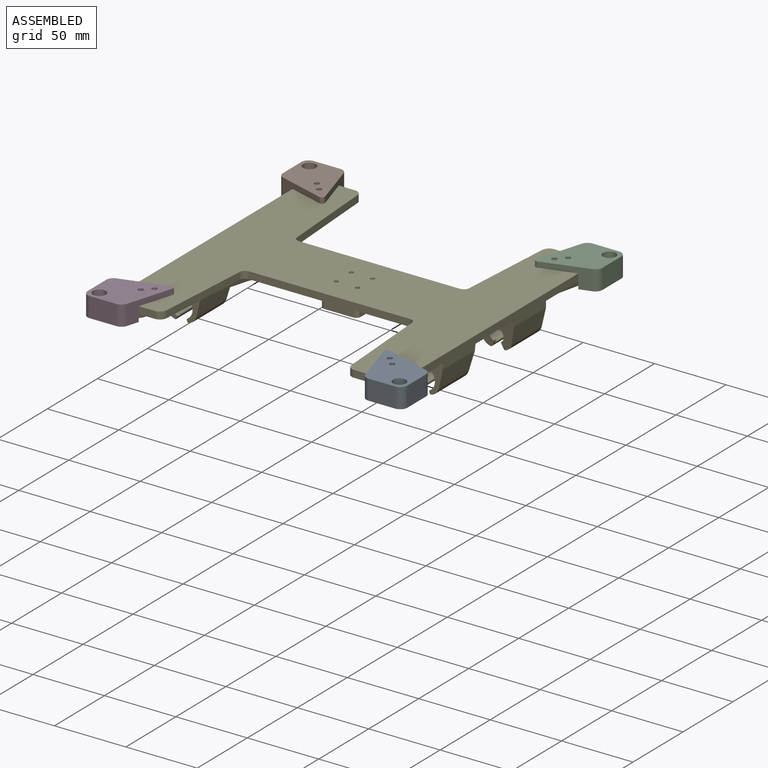
[diagram: assembled view]
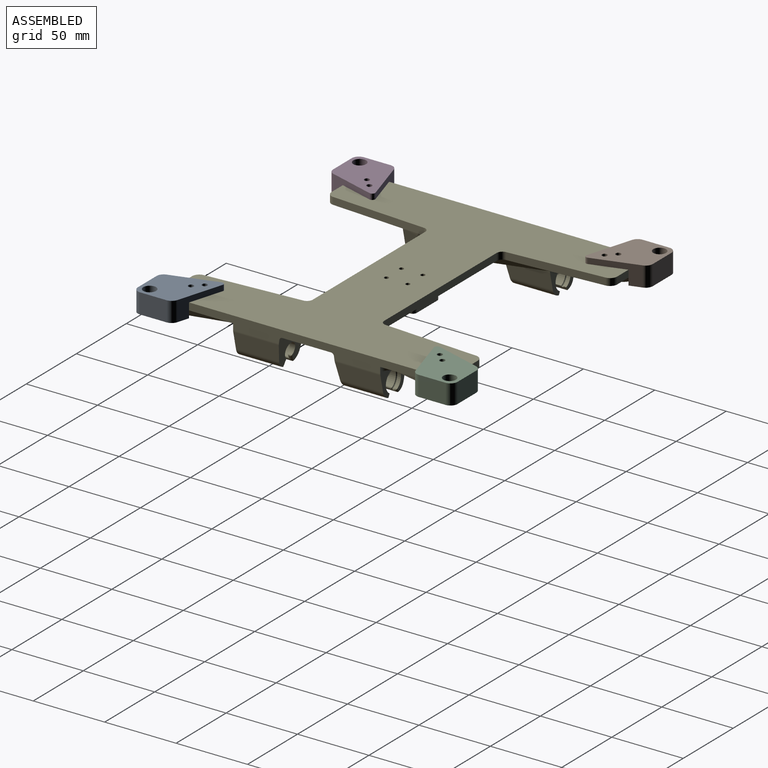
[diagram: assembled view, second angle]
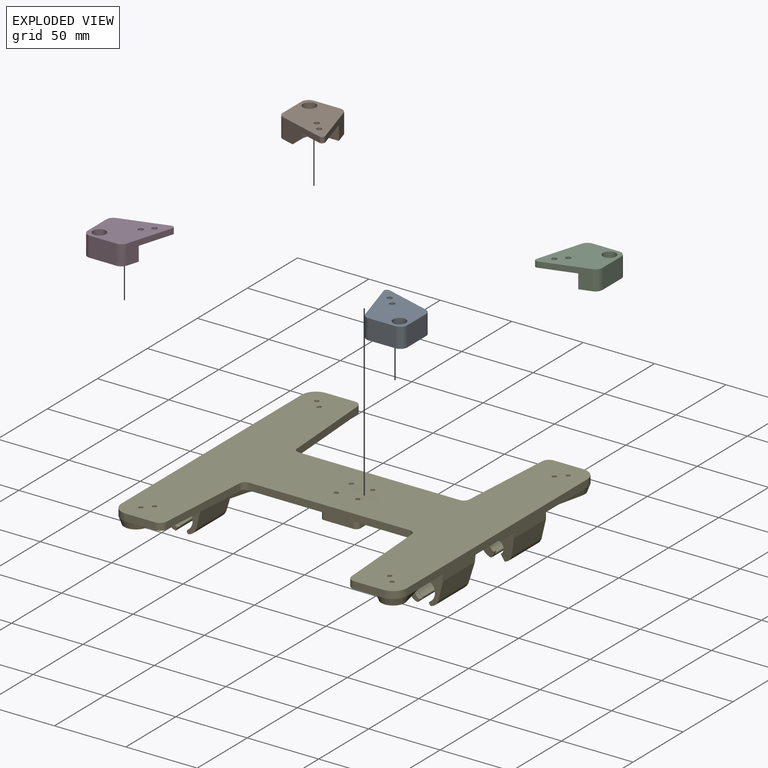
[diagram: exploded view]
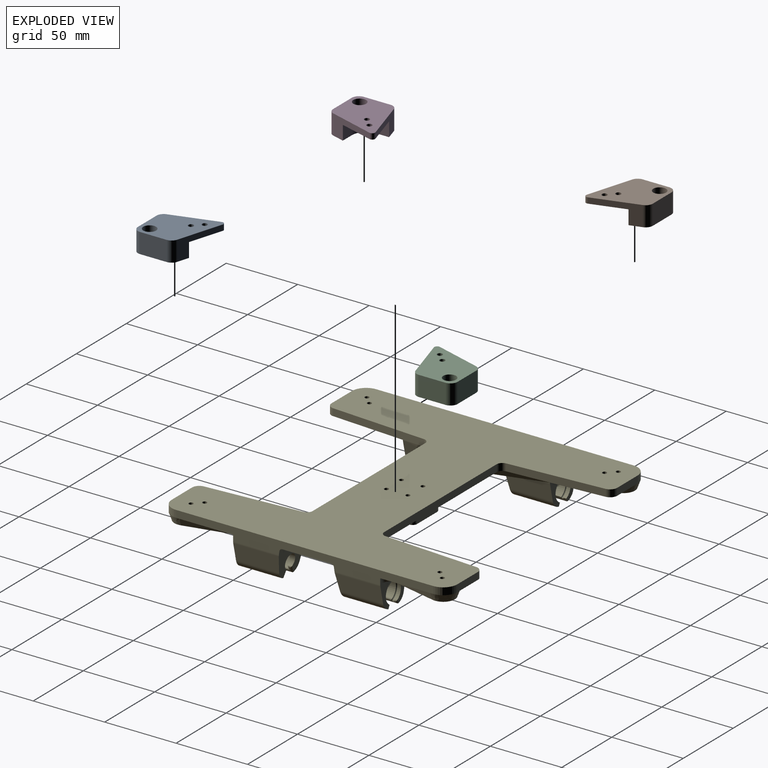
[diagram: exploded view, second angle]
ASSEMBLY  parts=5 mates=3
PART A: 19 faces, bbox 38.1x38.1x14 mm
  f0: cylinder r=2mm len=4mm, axis (0,0,-1), area 37.7mm2, adj f16,f18
  f1: plane 26.18x26.18mm, normal (0,0,-1), area 472.2mm2, adj f2,f3,f4,f9,f11,f13,f14,f15
  f2: plane 31.95x14mm, normal (-0.29,-0.96,0), area 220.5mm2, adj f1,f3,f10,f12,f15,f16
  f3: cylinder r=2mm len=4mm, axis (0,0,-1), area 17.2mm2, adj f1,f2,f4,f12
  f4: plane 31.95x14mm, normal (0.96,0.29,0), area 220.5mm2, adj f1,f3,f5,f12,f13,f16
  f5: cylinder r=5mm len=14mm, axis (0,0,-1), area 89.7mm2, adj f4,f6,f12,f16
  f6: plane 18.69x14mm, normal (0,1,0), area 261.6mm2, adj f5,f7,f12,f16
  f7: cylinder r=5mm len=14mm, axis (0,0,-1), area 110mm2, adj f6,f8,f12,f16
  f8: plane 18.69x14mm, normal (-1,0,0), area 261.6mm2, adj f7,f10,f12,f16
  f9: cylinder r=1.81mm len=4mm, axis (0,0,-1), area 45.5mm2, adj f1,f12
  f10: cylinder r=5mm len=14mm, axis (0,0,-1), area 89.7mm2, adj f2,f8,f12,f16
  f11: cylinder r=1.8mm len=4mm, axis (0,0,-1), area 45.2mm2, adj f1,f12
  f12: plane 38.09x38.09mm, normal (0,0,1), area 973.1mm2, adj f2,f3,f4,f5,f6,f7,f8,f9
  f13: plane 10x9.05mm, normal (0,-1,0), area 90.5mm2, adj f1,f4,f14,f16
  f14: cylinder r=10mm len=10mm, axis (0,0,1), area 157.1mm2, adj f1,f13,f15,f16
  f15: plane 10x9.05mm, normal (1,0,0), area 90.5mm2, adj f1,f2,f14,f16
  f16: plane 30.97x30.97mm, normal (0,0,-1), area 552mm2, adj f0,f2,f4,f5,f6,f7,f8,f10
  f17: cylinder r=4.5mm len=11mm, axis (0,0,1), area 311mm2, adj f12,f18
  f18: plane 9x9mm, normal (0,0,1), area 51.1mm2, adj f0,f17
PART B: same geometry as A
PART C: same geometry as A
PART D: same geometry as A
PART E: 200 faces, bbox 202.7x202.7x31.9 mm
  f0: plane 197.46x86.11mm, normal (0,0,-1), area 3851.8mm2, adj f6,f10,f13,f14,f15,f53,f56,f63
  f1: plane 197.46x86.11mm, normal (0,0,-1), area 3851.8mm2, adj f11,f12,f21,f34,f41,f91,f150,f151
  f2: plane 200x200mm, normal (0,0,1), area 21072.7mm2, adj f68,f69,f70,f71,f72,f73,f74,f75
  f3: plane 0.51x0.01mm, normal (0,0,-1), area 0mm2, adj f9,f177,f178
  f4: plane 0.51x0.01mm, normal (0,0,-1), area 0mm2, adj f7,f178,f179
  f5: plane 0.51x0.01mm, normal (0,0,-1), area 0mm2, adj f171,f181,f182
  f6: plane 42.49x5.33mm, normal (0.08,0.94,-0.34), area 222.2mm2, adj f0,f7,f67,f158,f178
  f7: cone r=5mm half-angle=20deg, axis (0,0,1), area 38.2mm2, adj f4,f6,f67,f159,f175,f178,f179
  f8: cone r=5mm half-angle=20deg, axis (0,0,1), area 38.2mm2, adj f67,f149,f159,f160,f175,f180,f181
  f9: cone r=5mm half-angle=20deg, axis (0,0,1), area 38.2mm2, adj f3,f10,f19,f172,f176,f177,f178
  f10: plane 42.49x5.33mm, normal (0.08,-0.94,-0.34), area 222.2mm2, adj f0,f9,f19,f173,f178
  f11: plane 26.35x23.77mm, normal (0,1,0), area 220.7mm2, adj f1,f18,f21,f28,f31,f32,f88,f89
  f12: plane 26.35x20.9mm, normal (0,-0.99,-0.14), area 334.3mm2, adj f1,f21,f22,f30,f31,f32,f88,f89
  f13: plane 32.1x0.43mm, normal (1,0,0), area 13.7mm2, adj f0,f14,f15,f101
  f14: plane 26.35x23.96mm, normal (0,-1,0), area 225.4mm2, adj f0,f13,f20,f45,f52,f54,f55,f61
  f15: plane 29.09x23.81mm, normal (0,0.99,-0.14), area 344mm2, adj f0,f13,f16,f51,f52,f54,f55,f61
  f16: cylinder r=2mm len=15.22mm, axis (1,0,0), area 43.2mm2, adj f15,f17,f54,f147
  f17: plane 34.23x18.85mm, normal (0,0,-1), area 582.2mm2, adj f16,f54,f64,f147,f154,f155
  f18: plane 181.1x8.46mm, normal (0,0,-1), area 510.5mm2, adj f11,f34,f70,f92,f150,f163,f166,f167
  f19: plane 180x87.5mm, normal (0,0,-1), area 2626.2mm2, adj f9,f10,f69,f73,f81,f82,f83,f86
  f20: plane 181.1x8.46mm, normal (0,0,-1), area 510.5mm2, adj f14,f54,f56,f72,f148,f152,f153,f156
  f21: plane 32.1x0.43mm, normal (-1,0,0), area 13.7mm2, adj f1,f11,f12,f96
  f22: cylinder r=2mm len=15.22mm, axis (-1,0,0), area 43.2mm2, adj f12,f23,f92,f164
  f23: plane 34.23x18.85mm, normal (0,0,-1), area 582.2mm2, adj f22,f92,f94,f151,f164,f165
  f24: plane 1.32x0.63mm, normal (0.91,0,-0.42), area 0.5mm2, adj f137,f139,f140,f142
  f25: plane 25.68x2.96mm, normal (0.91,0,-0.42), area 19mm2, adj f128,f130,f131,f132,f133,f134
  f26: plane 25.68x2.96mm, normal (-0.91,0,-0.42), area 19mm2, adj f120,f121,f122,f124,f125,f127
  f27: plane 2.32x0.63mm, normal (-0.91,0,-0.42), area 1.2mm2, adj f34,f115,f117,f119
  f28: cylinder r=7.55mm len=15.1mm, axis (0,1,0), area 80.1mm2, adj f11,f43,f123,f124,f126,f137,f139,f140
  f29: cylinder r=7.55mm len=15.1mm, axis (0,-1,0), area 80.1mm2, adj f34,f42,f115,f117,f129,f132
  f30: cylinder r=5mm len=10mm, axis (0,-1,0), area 97.3mm2, adj f12,f37,f120,f122,f125,f135,f138,f141
  f31: cylinder r=7mm len=30.15mm, axis (0,1,0), area 232.1mm2, adj f11,f12,f89,f125,f126,f127
  f32: cylinder r=7mm len=30.15mm, axis (0,1,0), area 232.1mm2, adj f11,f12,f88,f140,f141,f142
  f33: cylinder r=5mm len=10mm, axis (0,-1,0), area 97.3mm2, adj f35,f41,f113,f116,f118,f128,f131,f133
  f34: plane 26.35x23.85mm, normal (0,-1,0), area 225.2mm2, adj f1,f18,f27,f29,f39,f40,f90,f91
  f35: plane 15.1x13.91mm, normal (0,-1,0), area 81.5mm2, adj f33,f36,f113,f128
  f36: cylinder r=7.55mm len=23.46mm, axis (0,-1,0), area 916.4mm2, adj f35,f42,f113,f114,f117,f128,f130,f132
  f37: plane 15.1x13.91mm, normal (0,1,0), area 81.5mm2, adj f30,f38,f120,f135
  f38: cylinder r=7.55mm len=23.46mm, axis (0,1,0), area 916.4mm2, adj f37,f43,f120,f121,f124,f135,f136,f139
  f39: cylinder r=7mm len=30.15mm, axis (0,1,0), area 232.1mm2, adj f34,f41,f93,f118,f119
  f40: cylinder r=7mm len=30.15mm, axis (0,1,0), area 232.1mm2, adj f34,f41,f90,f133,f134
  f41: plane 26.35x20.9mm, normal (0,0.99,-0.14), area 334.3mm2, adj f1,f33,f39,f40,f90,f91,f92,f93
  f42: torus R=7.55mm, axis (0,-1,0), area 97.9mm2, adj f29,f36,f117,f132
  f43: torus R=7.55mm, axis (0,1,0), area 97.9mm2, adj f28,f38,f124,f139
  f44: cylinder r=7.55mm len=15.1mm, axis (0,1,0), area 83.7mm2, adj f56,f66,f103,f104
  f45: cylinder r=7.55mm len=15.1mm, axis (0,-1,0), area 80.1mm2, adj f14,f65,f107,f108
  f46: cylinder r=5mm len=10mm, axis (0,-1,0), area 81.7mm2, adj f59,f63,f103,f104
  f47: plane 31.88x12.02mm, normal (0.97,0,-0.23), area 382.8mm2, adj f50,f56,f63,f99
  f48: plane 31.88x12.02mm, normal (-0.97,0,-0.23), area 382.8mm2, adj f49,f56,f63,f100
  f49: cylinder r=7mm len=30.15mm, axis (0,1,0), area 257mm2, adj f48,f56,f63,f103
  f50: cylinder r=7mm len=30.15mm, axis (0,1,0), area 257mm2, adj f47,f56,f63,f104
  f51: cylinder r=5mm len=10mm, axis (0,-1,0), area 81.7mm2, adj f15,f57,f105,f106
  f52: plane 31.88x12.02mm, normal (0.97,0,-0.23), area 382.8mm2, adj f14,f15,f62,f101
  f53: plane 32.1x0.43mm, normal (1,0,0), area 13.7mm2, adj f0,f56,f63,f99
  f54: plane 103x5.43mm, normal (-1,0,0), area 397.2mm2, adj f14,f15,f16,f17,f20,f56,f63,f64
  f55: plane 31.88x12.02mm, normal (-0.97,0,-0.23), area 382.8mm2, adj f14,f15,f61,f102
  f56: plane 26.35x23.96mm, normal (0,1,0), area 225.8mm2, adj f0,f20,f44,f47,f48,f49,f50,f53
  f57: plane 15.25x15.1mm, normal (0,-1,0), area 86.9mm2, adj f51,f58,f105,f106,f107,f108
  f58: cylinder r=7.55mm len=23.45mm, axis (0,-1,0), area 916.4mm2, adj f57,f65,f107,f108
  f59: plane 15.1x14.39mm, normal (0,1,0), area 86.6mm2, adj f46,f60,f103,f104
  f60: cylinder r=7.55mm len=23.45mm, axis (0,1,0), area 957.9mm2, adj f59,f66,f103,f104
  f61: cylinder r=7mm len=30.15mm, axis (0,1,0), area 257mm2, adj f14,f15,f55,f105
  f62: cylinder r=7mm len=30.15mm, axis (0,1,0), area 257mm2, adj f14,f15,f52,f106
  f63: plane 29.09x23.81mm, normal (0,-0.99,-0.14), area 344mm2, adj f0,f46,f47,f48,f49,f50,f53,f54
  f64: cylinder r=2mm len=15.22mm, axis (1,0,0), area 43.2mm2, adj f17,f54,f63,f155
  f65: torus R=7.55mm, axis (0,-1,0), area 101.5mm2, adj f45,f58,f107,f108
  f66: torus R=7.55mm, axis (0,1,0), area 102.3mm2, adj f44,f60,f103,f104
  f67: plane 180x87.5mm, normal (0,0,-1), area 2626.2mm2, adj f6,f7,f8,f68,f71,f78,f79,f80
  f68: plane 20.32x5mm, normal (0,1,0), area 101.6mm2, adj f2,f67,f74,f85
  f69: plane 20.32x5mm, normal (0,-1,0), area 101.6mm2, adj f2,f19,f77,f87
  f70: plane 180x5mm, normal (1,0,0), area 900mm2, adj f2,f18,f74,f77
  f71: plane 20.32x5mm, normal (0,1,0), area 101.6mm2, adj f2,f67,f75,f84
  f72: plane 180x5mm, normal (-1,0,0), area 900mm2, adj f2,f20,f75,f76
  f73: plane 20.32x5mm, normal (0,-1,0), area 101.6mm2, adj f2,f19,f76,f86
  f74: cylinder r=10mm len=10mm, axis (0,0,1), area 78.5mm2, adj f2,f68,f70,f163
  f75: cylinder r=10mm len=10mm, axis (0,0,-1), area 78.5mm2, adj f2,f71,f72,f156
  f76: cylinder r=10mm len=10mm, axis (0,0,1), area 78.5mm2, adj f2,f72,f73,f152
  f77: cylinder r=10mm len=10mm, axis (0,0,-1), area 78.5mm2, adj f2,f69,f70,f167
  f78: plane 112.52x5mm, normal (0,1,0), area 562.6mm2, adj f2,f67,f143,f144
  f79: plane 66.6x5mm, normal (1,0.07,0), area 333.7mm2, adj f2,f67,f84,f143
  f80: plane 66.6x5mm, normal (-1,0.07,0), area 333.7mm2, adj f2,f67,f85,f144
  f81: plane 66.6x5mm, normal (1,-0.07,0), area 333.7mm2, adj f2,f19,f86,f146
  f82: plane 112.52x5mm, normal (0,-1,0), area 562.6mm2, adj f2,f19,f145,f146
  f83: plane 66.6x5mm, normal (-1,-0.07,0), area 333.7mm2, adj f2,f19,f87,f145
  f84: cylinder r=5mm len=5mm, axis (0,0,-1), area 37.6mm2, adj f2,f67,f71,f79
  f85: cylinder r=5mm len=5mm, axis (0,0,1), area 37.6mm2, adj f2,f67,f68,f80
  f86: cylinder r=5mm len=5mm, axis (0,0,-1), area 37.6mm2, adj f2,f19,f73,f81
  f87: cylinder r=5mm len=5mm, axis (0,0,1), area 37.6mm2, adj f2,f19,f69,f83
  f88: plane 31.88x12.02mm, normal (-0.97,0,-0.23), area 382.8mm2, adj f11,f12,f32,f96
  f89: plane 31.88x12.02mm, normal (0.97,0,-0.23), area 382.8mm2, adj f11,f12,f31,f95
  f90: plane 31.88x12.02mm, normal (-0.97,0,-0.23), area 382.8mm2, adj f34,f40,f41,f97
  f91: plane 32.1x0.43mm, normal (-1,0,0), area 13.7mm2, adj f1,f34,f41,f97
  f92: plane 103x5.43mm, normal (1,0,0), area 397.2mm2, adj f11,f12,f18,f22,f23,f34,f41,f94
  f93: plane 31.88x12.02mm, normal (0.97,0,-0.23), area 382.8mm2, adj f34,f39,f41,f98
  f94: cylinder r=2mm len=15.22mm, axis (-1,0,0), area 43.2mm2, adj f23,f41,f92,f151
  f95: cylinder r=5mm len=32.04mm, axis (0,1,0), area 36.4mm2, adj f11,f12,f89,f92
  f96: cylinder r=5mm len=32.04mm, axis (0,1,0), area 36.4mm2, adj f11,f12,f21,f88
  f97: cylinder r=5mm len=32.04mm, axis (0,1,0), area 36.4mm2, adj f34,f41,f90,f91
  f98: cylinder r=5mm len=32.04mm, axis (0,1,0), area 36.4mm2, adj f34,f41,f92,f93
  f99: cylinder r=5mm len=32.04mm, axis (0,1,0), area 36.4mm2, adj f47,f53,f56,f63
  f100: cylinder r=5mm len=32.04mm, axis (0,1,0), area 36.4mm2, adj f48,f54,f56,f63
  f101: cylinder r=5mm len=32.04mm, axis (0,1,0), area 36.4mm2, adj f13,f14,f15,f52
  f102: cylinder r=5mm len=32.04mm, axis (0,1,0), area 36.4mm2, adj f14,f15,f54,f55
  f103: plane 30.02x4.48mm, normal (0.91,0,-0.42), area 77mm2, adj f44,f46,f49,f56,f59,f60,f63,f66
  f104: plane 30.02x4.48mm, normal (-0.91,0,-0.42), area 77mm2, adj f44,f46,f50,f56,f59,f60,f63,f66
  f105: plane 30.02x4.48mm, normal (0.91,0,-0.42), area 52.4mm2, adj f14,f15,f51,f57,f61,f108
  f106: plane 30.02x4.48mm, normal (-0.91,0,-0.42), area 52.4mm2, adj f14,f15,f51,f57,f62,f107
  f107: cylinder r=1mm len=27mm, axis (0,-1,0), area 37.6mm2, adj f14,f45,f57,f58,f65,f106
  f108: cylinder r=1mm len=27mm, axis (0,-1,0), area 37.6mm2, adj f14,f45,f57,f58,f65,f105
  f109: plane 25.68x2.96mm, normal (0.91,0,-0.42), area 19mm2, adj f135,f136,f138,f139,f141,f142
  f110: plane 1.32x0.63mm, normal (-0.91,0,-0.42), area 0.5mm2, adj f123,f124,f126,f127
  f111: plane 2.32x0.63mm, normal (0.91,0,-0.42), area 1.2mm2, adj f34,f129,f132,f134
  f112: plane 25.68x2.96mm, normal (-0.91,0,-0.42), area 19mm2, adj f113,f114,f116,f117,f118,f119
  f113: cylinder r=1mm len=3.68mm, axis (0.42,0,-0.91), area 4mm2, adj f33,f35,f36,f112,f114,f116
  f114: cylinder r=1mm len=24.44mm, axis (0,-1,0), area 34.3mm2, adj f36,f112,f113,f117
  f115: cylinder r=1mm len=2.04mm, axis (0,-1,0), area 2.5mm2, adj f27,f29,f34,f117
  f116: cylinder r=1mm len=3.06mm, axis (0,-1,0), area 2.8mm2, adj f33,f112,f113,f118
  f117: bspline ~3.5x2.19mm, area 4.2mm2, adj f27,f29,f36,f42,f112,f114,f115,f119
  f118: cylinder r=1mm len=5.08mm, axis (-0.42,0.13,0.9), area 6.9mm2, adj f33,f39,f41,f112,f116,f119
  f119: cylinder r=1mm len=29.39mm, axis (0,1,0), area 39.4mm2, adj f27,f34,f39,f112,f117,f118
  f120: cylinder r=1mm len=3.68mm, axis (-0.42,0,0.91), area 4mm2, adj f26,f30,f37,f38,f121,f122
  f121: cylinder r=1mm len=24.44mm, axis (0,1,0), area 34.3mm2, adj f26,f38,f120,f124
  f122: cylinder r=1mm len=3.06mm, axis (0,-1,0), area 2.8mm2, adj f26,f30,f120,f125
  f123: cylinder r=1mm len=2.04mm, axis (0,1,0), area 1.7mm2, adj f28,f110,f124,f126
  f124: bspline ~3.5x2.19mm, area 4.2mm2, adj f26,f28,f38,f43,f110,f121,f123,f127
  f125: cylinder r=1mm len=5.08mm, axis (0.42,0.13,-0.9), area 6.9mm2, adj f12,f26,f30,f31,f122,f127
  f126: cylinder r=1mm len=2.88mm, axis (-0.42,0,0.91), area 3.1mm2, adj f11,f28,f31,f110,f123,f127
  f127: cylinder r=1mm len=29.36mm, axis (0,1,0), area 38.7mm2, adj f26,f31,f110,f124,f125,f126
  f128: cylinder r=1mm len=3.68mm, axis (0.42,0,0.91), area 4mm2, adj f25,f33,f35,f36,f130,f131
  f129: cylinder r=1mm len=2.04mm, axis (0,-1,0), area 2.5mm2, adj f29,f34,f111,f132
  f130: cylinder r=1mm len=24.44mm, axis (0,-1,0), area 34.3mm2, adj f25,f36,f128,f132
  f131: cylinder r=1mm len=3.06mm, axis (0,-1,0), area 2.8mm2, adj f25,f33,f128,f133
  f132: bspline ~3.5x2.19mm, area 4.2mm2, adj f25,f29,f36,f42,f111,f129,f130,f134
  f133: cylinder r=1mm len=5.08mm, axis (-0.42,-0.13,-0.9), area 6.9mm2, adj f25,f33,f40,f41,f131,f134
  f134: cylinder r=1mm len=29.39mm, axis (0,1,0), area 39.4mm2, adj f25,f34,f40,f111,f132,f133
  f135: cylinder r=1mm len=3.68mm, axis (-0.42,0,-0.91), area 4mm2, adj f30,f37,f38,f109,f136,f138
  f136: cylinder r=1mm len=24.44mm, axis (0,1,0), area 34.3mm2, adj f38,f109,f135,f139
  f137: cylinder r=1mm len=2.04mm, axis (0,1,0), area 1.7mm2, adj f24,f28,f139,f140
  f138: cylinder r=1mm len=3.06mm, axis (0,-1,0), area 2.8mm2, adj f30,f109,f135,f141
  f139: bspline ~3.5x2.19mm, area 4.2mm2, adj f24,f28,f38,f43,f109,f136,f137,f142
  f140: cylinder r=1mm len=2.88mm, axis (-0.42,0,-0.91), area 3.1mm2, adj f11,f24,f28,f32,f137,f142
  f141: cylinder r=1mm len=5.08mm, axis (0.42,-0.13,0.9), area 6.9mm2, adj f12,f30,f32,f109,f138,f142
  f142: cylinder r=1mm len=29.36mm, axis (0,1,0), area 38.7mm2, adj f24,f32,f109,f139,f140,f141
  f143: cylinder r=4mm len=5mm, axis (0,0,-1), area 30.1mm2, adj f2,f67,f78,f79
  f144: cylinder r=4mm len=5mm, axis (0,0,1), area 30.1mm2, adj f2,f67,f78,f80
  f145: cylinder r=4mm len=5mm, axis (0,0,1), area 30.1mm2, adj f2,f19,f82,f83
  f146: cylinder r=4mm len=5mm, axis (0,0,-1), area 30.1mm2, adj f2,f19,f81,f82
  f147: plane 18.6x5.59mm, normal (-0.92,0.21,-0.34), area 73.6mm2, adj f0,f15,f16,f17,f154
  f148: plane 30.6x8.85mm, normal (-0.92,-0.21,-0.34), area 166mm2, adj f0,f20,f156,f197
  f149: plane 0.51x0.01mm, normal (0,0,-1), area 0mm2, adj f8,f180,f181
  f150: plane 30.6x8.85mm, normal (0.92,-0.21,-0.34), area 166mm2, adj f1,f18,f163,f198
  f151: plane 18.6x5.59mm, normal (0.92,0.21,-0.34), area 73.6mm2, adj f1,f23,f41,f94,f165
  f152: cone r=10mm half-angle=20deg, axis (0,0,1), area 149.8mm2, adj f0,f19,f20,f76,f153,f174
  f153: plane 30.6x8.85mm, normal (-0.92,0.21,-0.34), area 166mm2, adj f0,f20,f152,f196
  f154: cone r=5mm half-angle=20deg, axis (0,0,-1), area 11.3mm2, adj f0,f17,f147,f155
  f155: plane 18.6x5.59mm, normal (-0.92,-0.21,-0.34), area 73.6mm2, adj f0,f17,f63,f64,f154
  f156: cone r=10mm half-angle=20deg, axis (0,0,1), area 149.8mm2, adj f0,f20,f67,f75,f148,f157
  f157: plane 73.69x22.21mm, normal (0.91,0.25,-0.34), area 404.4mm2, adj f0,f67,f156,f158
  f158: cone r=5mm half-angle=20deg, axis (0,0,-1), area 38.2mm2, adj f0,f6,f67,f157
  f159: plane 20x5mm, normal (0,0.94,-0.34), area 106.4mm2, adj f7,f8,f67,f175
  f160: plane 42.49x5.33mm, normal (-0.08,0.94,-0.34), area 222.2mm2, adj f1,f8,f67,f161,f181
  f161: cone r=5mm half-angle=20deg, axis (0,0,-1), area 38.2mm2, adj f1,f67,f160,f162
  f162: plane 73.69x22.21mm, normal (-0.91,0.25,-0.34), area 404.4mm2, adj f1,f67,f161,f163
  f163: cone r=10mm half-angle=20deg, axis (0,0,1), area 149.8mm2, adj f1,f18,f67,f74,f150,f162
  f164: plane 18.6x5.59mm, normal (0.92,-0.21,-0.34), area 73.6mm2, adj f1,f12,f22,f23,f165
  f165: cone r=5mm half-angle=20deg, axis (0,0,-1), area 11.3mm2, adj f1,f23,f151,f164
  f166: plane 30.6x8.85mm, normal (0.92,0.21,-0.34), area 166mm2, adj f1,f18,f167,f199
  f167: cone r=10mm half-angle=20deg, axis (0,0,1), area 149.8mm2, adj f1,f18,f19,f77,f166,f168
  f168: plane 73.69x22.21mm, normal (-0.91,-0.25,-0.34), area 404.4mm2, adj f1,f19,f167,f169
  f169: cone r=5mm half-angle=20deg, axis (0,0,-1), area 38.2mm2, adj f1,f19,f168,f170
  f170: plane 42.49x5.33mm, normal (-0.08,-0.94,-0.34), area 222.2mm2, adj f1,f19,f169,f171,f181
  f171: cone r=5mm half-angle=20deg, axis (0,0,1), area 38.2mm2, adj f5,f19,f170,f172,f176,f181,f182
  f172: plane 20x5mm, normal (0,-0.94,-0.34), area 106.4mm2, adj f9,f19,f171,f176
  f173: cone r=5mm half-angle=20deg, axis (0,0,-1), area 38.2mm2, adj f0,f10,f19,f174
  f174: plane 73.69x22.21mm, normal (0.91,-0.25,-0.34), area 404.4mm2, adj f0,f19,f152,f173
  f175: plane 20.35x5.02mm, normal (0,1,0), area 101.7mm2, adj f7,f8,f159,f179,f180,f183
  f176: plane 20.35x5.02mm, normal (0,-1,0), area 101.7mm2, adj f9,f171,f172,f177,f182,f183
  f177: cylinder r=3mm len=5.19mm, axis (0,0,1), area 24.1mm2, adj f3,f9,f176,f178,f183
  f178: plane 25.36x6.03mm, normal (-1,0,0), area 128.3mm2, adj f0,f3,f4,f6,f7,f9,f10,f177
  f179: cylinder r=3mm len=5.19mm, axis (0,0,1), area 24.1mm2, adj f4,f7,f175,f178,f183
  f180: cylinder r=3mm len=5.19mm, axis (0,0,1), area 24.1mm2, adj f8,f149,f175,f181,f183
  f181: plane 25.36x6.03mm, normal (1,0,0), area 128.3mm2, adj f1,f5,f8,f149,f160,f170,f171,f180
  f182: cylinder r=3mm len=5.19mm, axis (0,0,1), area 24.1mm2, adj f5,f171,f176,f181,f183
  f183: plane 31.36x26.34mm, normal (0,0,-1), area 790.1mm2, adj f175,f176,f177,f178,f179,f180,f181,f182
  f184: cylinder r=1.5mm len=15mm, axis (0,0,1), area 141.4mm2, adj f2,f183
  f185: cylinder r=1.5mm len=15mm, axis (0,0,1), area 141.4mm2, adj f2,f183
  f186: cylinder r=1.5mm len=15mm, axis (0,0,1), area 141.4mm2, adj f2,f183
  f187: cylinder r=1.5mm len=15mm, axis (0,0,1), area 141.4mm2, adj f2,f183
  f188: cylinder r=1.5mm len=10mm, axis (0,0,1), area 94.2mm2, adj f0,f2
  f189: cylinder r=1.5mm len=10mm, axis (0,0,1), area 94.2mm2, adj f1,f2
  f190: cylinder r=1.5mm len=10mm, axis (0,0,1), area 94.2mm2, adj f0,f2
  f191: cylinder r=1.5mm len=10mm, axis (0,0,1), area 94.2mm2, adj f0,f2
  f192: cylinder r=1.5mm len=10mm, axis (0,0,1), area 94.2mm2, adj f0,f2
  f193: cylinder r=1.5mm len=10mm, axis (0,0,1), area 94.2mm2, adj f1,f2
  f194: cylinder r=1.5mm len=10mm, axis (0,0,1), area 94.2mm2, adj f1,f2
  f195: cylinder r=1.5mm len=10mm, axis (0,0,1), area 94.2mm2, adj f1,f2
  f196: cylinder r=5mm len=8.46mm, axis (0.35,0,-0.94), area 47.6mm2, adj f0,f14,f20,f153
  f197: cylinder r=5mm len=8.46mm, axis (0.35,0,-0.94), area 47.6mm2, adj f0,f20,f56,f148
  f198: cylinder r=5mm len=8.46mm, axis (-0.35,0,-0.94), area 47.6mm2, adj f1,f11,f18,f150
  f199: cylinder r=5mm len=8.46mm, axis (-0.35,0,-0.94), area 47.6mm2, adj f1,f18,f34,f166
PLACE A rot(axis=(0,0,1),180deg) t=(0,0,-10)mm
PLACE B t=(0,0,-10)mm
PLACE C rot(axis=(0,0,-1),90deg) t=(0,0,-10)mm
PLACE D rot(axis=(0,0,1),90deg) t=(0,0,-10)mm
PLACE E at identity fixed
MATE planar A.f11 <-> E.f193  axis (0,0,-1) through (82.32,-82.32,19.95)mm
MATE planar D.f9 <-> E.f191  axis (0,0,-1) through (-87.98,-87.98,19.95)mm
MATE planar B.f9 <-> E.f188  axis (0,0,-1) through (-87.98,87.98,19.95)mm
